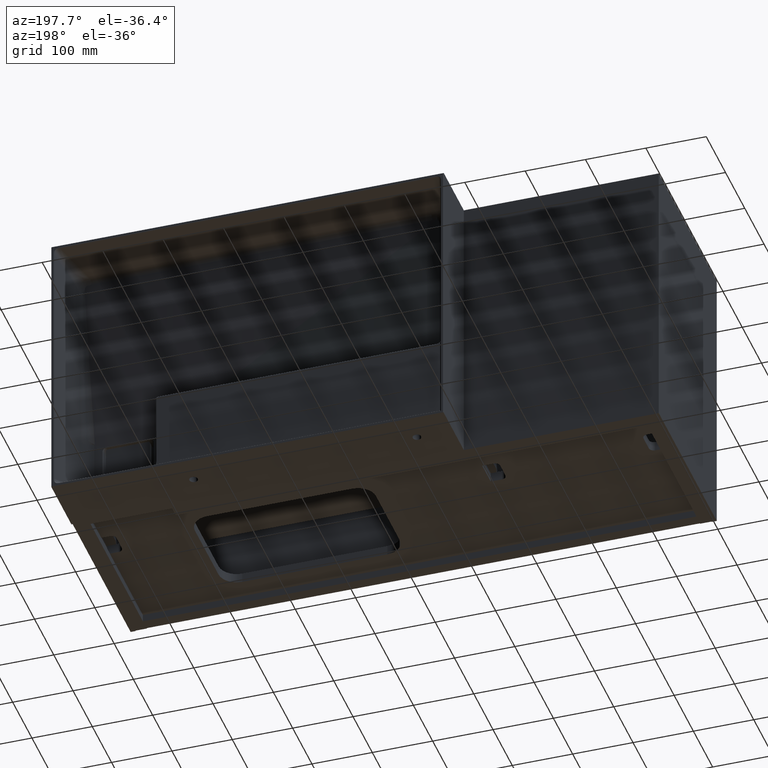
[diagram: clean part render]
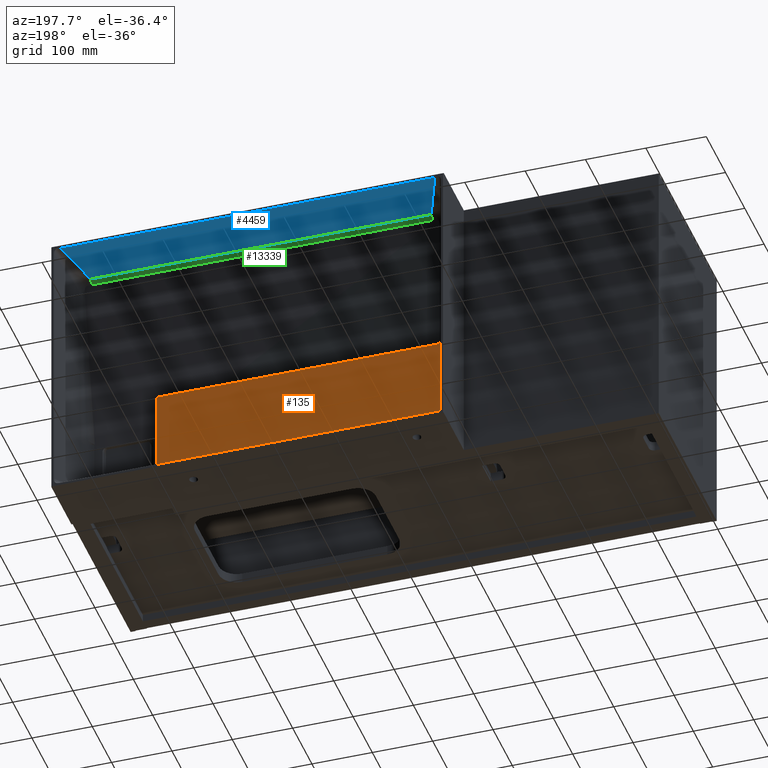
[diagram: same view with three faces highlighted in distinct colors, each labeled with its STEP entity id]
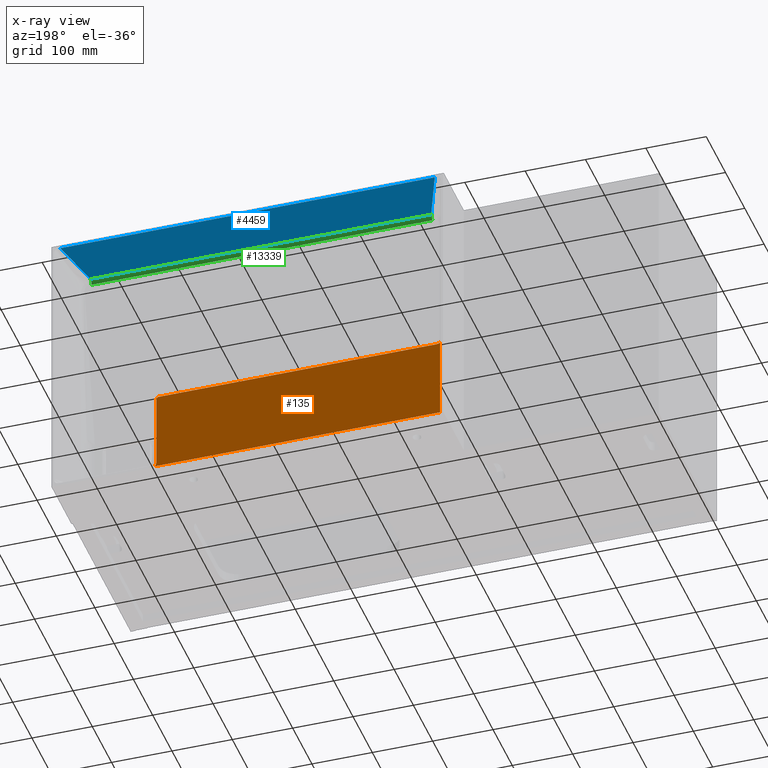
[diagram: x-ray of the same camera — body ghosted, the three highlighted faces saturated]
A machine part, auxiliary view with three faces highlighted in distinct colors.
The next image is the same camera in x-ray (body ghosted, the three faces saturated) — at least one of them is partly hidden behind the body in this view.
Their STEP definitions:

[orange] entity #135 — the highlighted planar face has unit normal (0, 1, 0).
#135 = ADVANCED_FACE ( 'NONE', ( #7012 ), #11899, .T. ) ;
#157 = VERTEX_POINT ( 'NONE', #2205 ) ;
#257 = EDGE_CURVE ( 'NONE', #3784, #4730, #8677, .T. ) ;
#392 = CARTESIAN_POINT ( 'NONE',  ( 806.9037684053056410, 395.0000000000000000, -460.7858540997308410 ) ) ;
#479 = CARTESIAN_POINT ( 'NONE',  ( 804.0258431290782255, 395.0000000000000000, -451.1449057083924004 ) ) ;
#567 = CARTESIAN_POINT ( 'NONE',  ( 339.2604613877724091, 394.9999999999998863, -325.8775157247926586 ) ) ;
#927 = CARTESIAN_POINT ( 'NONE',  ( 650.0000000000000000, 395.0000000000000000, -235.0000000000000000 ) ) ;
#1036 = DIRECTION ( 'NONE',  ( 2.413528314402515076E-16, -0.0000000000000000000, -1.000000000000000000 ) ) ;
#1172 = ORIENTED_EDGE ( 'NONE', *, *, #6297, .F. ) ;
#1580 = B_SPLINE_CURVE_WITH_KNOTS ( 'NONE', 3,
 ( #12731, #1764, #6648, #11539, #567, #5448, #10339, #15237, #4234, #9134, #14027, #3045, #7935, #12816 ),
 .UNSPECIFIED., .F., .F.,
 ( 4, 2, 2, 2, 2, 2, 4 ),
 ( 0.0000000000000000000, 0.002062643345217201468, 0.003093965017825802636, 0.004125286690434402936, 0.006187930035651802163, 0.007219251708260461878, 0.008250573380869119858 ),
 .UNSPECIFIED. ) ;
#1679 = CARTESIAN_POINT ( 'NONE',  ( 804.1476123154426432, 395.0000000000002842, -454.5767451132578003 ) ) ;
#1764 = CARTESIAN_POINT ( 'NONE',  ( 341.3208708988745457, 394.9999999999998863, -325.9741568709463877 ) ) ;
#2119 = AXIS2_PLACEMENT_3D ( 'NONE', #927, #5812, #10694 ) ;
#2205 = CARTESIAN_POINT ( 'NONE',  ( 334.2141459002691022, 395.0000000000000000, -323.9227097565687359 ) ) ;
#2580 = CARTESIAN_POINT ( 'NONE',  ( 802.3698889352292554, 395.0000000000000568, -325.9741568709216608 ) ) ;
#2605 = CARTESIAN_POINT ( 'NONE',  ( 804.0258431290781118, 395.0000000000000000, -234.9999999999999716 ) ) ;
#2880 = CARTESIAN_POINT ( 'NONE',  ( 804.6693992979872974, 395.0000000000001705, -457.0962568864613900 ) ) ;
#2967 = VECTOR ( 'NONE', #7489, 1000.000000000000000 ) ;
#3008 = EDGE_CURVE ( 'NONE', #10980, #10568, #9977, .T. ) ;
#3045 = CARTESIAN_POINT ( 'NONE',  ( 334.7455617612931178, 395.0000000000002842, -324.3644778535577871 ) ) ;
#3784 = VERTEX_POINT ( 'NONE', #13087 ) ;
#3856 = LINE ( 'NONE', #8750, #14761 ) ;
#3874 = CARTESIAN_POINT ( 'NONE',  ( 334.2141459002691590, 395.0000000000000000, -460.7858540997308410 ) ) ;
#4064 = CARTESIAN_POINT ( 'NONE',  ( 805.5314749255285278, 395.0000000000001137, -459.0918373645996553 ) ) ;
#4234 = CARTESIAN_POINT ( 'NONE',  ( 336.5742237291167953, 395.0000000000002842, -325.3268668704506581 ) ) ;
#4577 = LINE ( 'NONE', #9464, #13228 ) ;
#4682 = EDGE_CURVE ( 'NONE', #10568, #3784, #13581, .T. ) ;
#4730 = VERTEX_POINT ( 'NONE', #8765 ) ;
#5280 = CARTESIAN_POINT ( 'NONE',  ( 806.5796262205138873, 394.9999999999998863, -460.4889491759980160 ) ) ;
#5385 = CARTESIAN_POINT ( 'NONE',  ( 804.0258431290782255, 395.0000000000000000, -451.1449057083924004 ) ) ;
#5448 = CARTESIAN_POINT ( 'NONE',  ( 338.5764921108854537, 395.0000000000001137, -325.7912511627889671 ) ) ;
#5488 = CARTESIAN_POINT ( 'NONE',  ( 806.9037684053056410, 395.0000000000000000, -460.7858540997308410 ) ) ;
#5812 = DIRECTION ( 'NONE',  ( 0.0000000000000000000, 1.000000000000000000, 0.0000000000000000000 ) ) ;
#6228 = VECTOR ( 'NONE', #1036, 1000.000000000000000 ) ;
#6297 = EDGE_CURVE ( 'NONE', #9762, #157, #1580, .T. ) ;
#6558 = VERTEX_POINT ( 'NONE', #3874 ) ;
#6562 = CARTESIAN_POINT ( 'NONE',  ( 804.0297821953067796, 395.0000000000002842, -452.8680177196101226 ) ) ;
#6648 = CARTESIAN_POINT ( 'NONE',  ( 340.6325137807947385, 395.0000000000001705, -325.9715815982377194 ) ) ;
#7012 = FACE_OUTER_BOUND ( 'NONE', #12602, .T. ) ;
#7114 = LINE ( 'NONE', #12010, #6228 ) ;
#7139 = ORIENTED_EDGE ( 'NONE', *, *, #7212, .F. ) ;
#7212 = EDGE_CURVE ( 'NONE', #4730, #9762, #3856, .T. ) ;
#7463 = CARTESIAN_POINT ( 'NONE',  ( 800.0272138291759347, 395.0000000000000000, -325.9741568709216608 ) ) ;
#7489 = DIRECTION ( 'NONE',  ( -1.982541115402065356E-16, 0.0000000000000000000, 1.000000000000000000 ) ) ;
#7762 = CARTESIAN_POINT ( 'NONE',  ( 804.5507456264558641, 395.0000000000002842, -456.6803406497027709 ) ) ;
#7935 = CARTESIAN_POINT ( 'NONE',  ( 334.4712327410496187, 395.0000000000000568, -324.1564242695624785 ) ) ;
#8562 = EDGE_CURVE ( 'NONE', #6558, #10980, #4577, .T. ) ;
#8663 = CARTESIAN_POINT ( 'NONE',  ( 804.0258431290781118, 395.0000000000000000, -329.9727861708239516 ) ) ;
#8677 =( BOUNDED_CURVE ( )  B_SPLINE_CURVE ( 3, ( #8663, #13556, #2580, #7463 ),
 .UNSPECIFIED., .F., .T. ) 
 B_SPLINE_CURVE_WITH_KNOTS ( ( 4, 4 ),
 ( 2.356537106530507408, 3.926648200649078380 ),
 .UNSPECIFIED. ) 
 CURVE ( )  GEOMETRIC_REPRESENTATION_ITEM ( )  RATIONAL_B_SPLINE_CURVE ( ( 1.000000000000000000, 0.8048993373437772769, 0.8048993373437772769, 1.000000000000000000 ) ) 
 REPRESENTATION_ITEM ( '' )  );
#8750 = CARTESIAN_POINT ( 'NONE',  ( 650.0000000000000000, 395.0000000000000000, -325.9741568709216608 ) ) ;
#8765 = CARTESIAN_POINT ( 'NONE',  ( 800.0272138291759347, 395.0000000000000000, -325.9741568709216608 ) ) ;
#8959 = CARTESIAN_POINT ( 'NONE',  ( 805.1326691464023497, 395.0000000000001705, -458.3223080525924615 ) ) ;
#9134 = CARTESIAN_POINT ( 'NONE',  ( 335.6307633916148916, 395.0000000000002842, -324.8999211131446145 ) ) ;
#9464 = CARTESIAN_POINT ( 'NONE',  ( 650.0000000000000000, 395.0000000000000000, -460.7858540997308410 ) ) ;
#9762 = VERTEX_POINT ( 'NONE', #11352 ) ;
#9977 = B_SPLINE_CURVE_WITH_KNOTS ( 'NONE', 3,
 ( #392, #5280, #10164, #15067, #4064, #8959, #13861, #2880, #7762, #12641, #1679, #6562, #11454, #479 ),
 .UNSPECIFIED., .F., .F.,
 ( 4, 2, 2, 2, 2, 2, 4 ),
 ( 0.0000000000000000000, 0.001314175442862175643, 0.002628350885724351285, 0.003942526328586526928, 0.005256701771448702570, 0.007885052657173053856, 0.01051340354289740514 ),
 .UNSPECIFIED. ) ;
#10164 = CARTESIAN_POINT ( 'NONE',  ( 806.2850225118213530, 395.0000000000000568, -460.1621168228376746 ) ) ;
#10339 = CARTESIAN_POINT ( 'NONE',  ( 338.2355843847057031, 394.9999999999998295, -325.7355729384422602 ) ) ;
#10568 = VERTEX_POINT ( 'NONE', #5385 ) ;
#10694 = DIRECTION ( 'NONE',  ( 0.0000000000000000000, 0.0000000000000000000, 1.000000000000000000 ) ) ;
#10980 = VERTEX_POINT ( 'NONE', #5488 ) ;
#11206 = ORIENTED_EDGE ( 'NONE', *, *, #15845, .F. ) ;
#11352 = CARTESIAN_POINT ( 'NONE',  ( 342.0093630388655583, 395.0000000000000000, -325.9741568709216608 ) ) ;
#11427 = ORIENTED_EDGE ( 'NONE', *, *, #3008, .F. ) ;
#11454 = CARTESIAN_POINT ( 'NONE',  ( 804.0258431288257270, 395.0000000000000000, -452.0067104691340774 ) ) ;
#11539 = CARTESIAN_POINT ( 'NONE',  ( 339.6031032880878229, 395.0000000000001137, -325.9081120509787297 ) ) ;
#11899 = PLANE ( 'NONE',  #2119 ) ;
#12010 = CARTESIAN_POINT ( 'NONE',  ( 334.2141459002691022, 395.0000000000000000, -235.0000000000000568 ) ) ;
#12602 = EDGE_LOOP ( 'NONE', ( #13900, #11206, #1172, #7139, #13999, #15201, #11427 ) ) ;
#12641 = CARTESIAN_POINT ( 'NONE',  ( 804.2581647348011984, 395.0000000000003979, -455.4245869311435513 ) ) ;
#12731 = CARTESIAN_POINT ( 'NONE',  ( 342.0093630388655583, 395.0000000000000000, -325.9741568709216608 ) ) ;
#12816 = CARTESIAN_POINT ( 'NONE',  ( 334.2141459002691022, 395.0000000000000000, -323.9227097565687359 ) ) ;
#13087 = CARTESIAN_POINT ( 'NONE',  ( 804.0258431290781118, 395.0000000000000000, -329.9727861708239516 ) ) ;
#13228 = VECTOR ( 'NONE', #14361, 1000.000000000000000 ) ;
#13556 = CARTESIAN_POINT ( 'NONE',  ( 804.0258431290784529, 395.0000000000000568, -327.6301110647706878 ) ) ;
#13581 = LINE ( 'NONE', #2605, #2967 ) ;
#13647 = DIRECTION ( 'NONE',  ( -1.000000000000000000, 0.0000000000000000000, 5.843279076974509016E-17 ) ) ;
#13861 = CARTESIAN_POINT ( 'NONE',  ( 804.9616185335460159, 395.0000000000002274, -457.9211539023941100 ) ) ;
#13900 = ORIENTED_EDGE ( 'NONE', *, *, #8562, .F. ) ;
#13999 = ORIENTED_EDGE ( 'NONE', *, *, #257, .F. ) ;
#14027 = CARTESIAN_POINT ( 'NONE',  ( 335.3243234332734914, 395.0000000000002274, -324.7357828460449696 ) ) ;
#14361 = DIRECTION ( 'NONE',  ( 1.000000000000000000, -0.0000000000000000000, -0.0000000000000000000 ) ) ;
#14761 = VECTOR ( 'NONE', #13647, 1000.000000000000000 ) ;
#15067 = CARTESIAN_POINT ( 'NONE',  ( 805.7595238956942012, 395.0000000000000000, -459.4611088881936780 ) ) ;
#15201 = ORIENTED_EDGE ( 'NONE', *, *, #4682, .F. ) ;
#15237 = CARTESIAN_POINT ( 'NONE',  ( 337.2286717636820299, 394.9999999999998863, -325.5247354199294136 ) ) ;
#15845 = EDGE_CURVE ( 'NONE', #157, #6558, #7114, .T. ) ;

[blue] entity #4459 — the highlighted planar face has unit normal (0, -0.2588, 0.9659).
#82 = VERTEX_POINT ( 'NONE', #14311 ) ;
#1021 = CARTESIAN_POINT ( 'NONE',  ( 370.0351061994886095, 335.6455462854175380, -23.58346986432410830 ) ) ;
#1260 = B_SPLINE_CURVE_WITH_KNOTS ( 'NONE', 3,
 ( #2224, #7100, #11997, #1021, #5904, #10788, #15692 ),
 .UNSPECIFIED., .F., .F.,
 ( 4, 3, 4 ),
 ( 0.3400219910679249669, 0.3423085011432789870, 0.9045247988192487432 ),
 .UNSPECIFIED. ) ;
#1482 = CARTESIAN_POINT ( 'NONE',  ( 960.0405550710241869, 404.2588190451297123, -5.198598838302814329 ) ) ;
#1558 = ORIENTED_EDGE ( 'NONE', *, *, #8642, .F. ) ;
#2001 = EDGE_CURVE ( 'NONE', #82, #11980, #13806, .T. ) ;
#2224 = CARTESIAN_POINT ( 'NONE',  ( 367.7485961235876744, 335.6455462856420695, -23.58346986426387915 ) ) ;
#2674 = CARTESIAN_POINT ( 'NONE',  ( 932.2514038755812180, 335.6455462853363656, -23.58346986434584025 ) ) ;
#2796 = CARTESIAN_POINT ( 'NONE',  ( 358.4855457211724570, 358.5166372060082836, -17.45517952213296553 ) ) ;
#3110 = DIRECTION ( 'NONE',  ( 0.0000000000000000000, -0.2588190451025213501, 0.9659258262890680902 ) ) ;
#3649 = DIRECTION ( 'NONE',  ( -1.000000000000000000, 0.0000000000000000000, 0.0000000000000000000 ) ) ;
#4146 = VERTEX_POINT ( 'NONE', #10966 ) ;
#4299 = FACE_OUTER_BOUND ( 'NONE', #13856, .T. ) ;
#4459 = ADVANCED_FACE ( 'NONE', ( #4299 ), #9196, .F. ) ;
#5525 = EDGE_CURVE ( 'NONE', #11980, #4146, #9747, .T. ) ;
#5904 = CARTESIAN_POINT ( 'NONE',  ( 557.4405387581451805, 335.6455462854175380, -23.58346986432410830 ) ) ;
#7100 = CARTESIAN_POINT ( 'NONE',  ( 368.5107661492526745, 335.6455462854175380, -23.58346986432410830 ) ) ;
#7559 = CARTESIAN_POINT ( 'NONE',  ( 941.5144542752897223, 358.5166372050206292, -17.45517952239767112 ) ) ;
#7675 = CARTESIAN_POINT ( 'NONE',  ( 367.7485961235876744, 335.6455462856420695, -23.58346986426387915 ) ) ;
#7793 = CARTESIAN_POINT ( 'NONE',  ( 960.0405550710241869, 404.2588190451297123, -5.198598838302814329 ) ) ;
#8000 = DIRECTION ( 'NONE',  ( -0.0000000000000000000, -0.9659258262890680902, -0.2588190451025213501 ) ) ;
#8125 = EDGE_CURVE ( 'NONE', #14806, #82, #1260, .T. ) ;
#8642 = EDGE_CURVE ( 'NONE', #4146, #14806, #15411, .T. ) ;
#8879 = CARTESIAN_POINT ( 'NONE',  ( 339.9594449285664268, 404.2588190451832020, -5.198598838288493340 ) ) ;
#9196 = PLANE ( 'NONE',  #10238 ) ;
#9747 = LINE ( 'NONE', #14649, #14241 ) ;
#10238 = AXIS2_PLACEMENT_3D ( 'NONE', #14087, #3110, #8000 ) ;
#10428 = CARTESIAN_POINT ( 'NONE',  ( 367.7485961235876744, 335.6455462856420695, -23.58346986426387915 ) ) ;
#10788 = CARTESIAN_POINT ( 'NONE',  ( 744.8459713168016378, 335.6455462854175380, -23.58346986432410830 ) ) ;
#10966 = CARTESIAN_POINT ( 'NONE',  ( 339.9594449285664268, 404.2588190451832020, -5.198598838288493340 ) ) ;
#11980 = VERTEX_POINT ( 'NONE', #7793 ) ;
#11997 = CARTESIAN_POINT ( 'NONE',  ( 369.2729361743706136, 335.6455462854175380, -23.58346986432410830 ) ) ;
#12444 = CARTESIAN_POINT ( 'NONE',  ( 950.7775046737408502, 381.3877281259243546, -11.32688918012272872 ) ) ;
#13774 = CARTESIAN_POINT ( 'NONE',  ( 349.2224953248548331, 381.3877281249369844, -11.32688918038724246 ) ) ;
#13806 = B_SPLINE_CURVE_WITH_KNOTS ( 'NONE', 3,
 ( #2674, #7559, #12444, #1482 ),
 .UNSPECIFIED., .F., .F.,
 ( 4, 4 ),
 ( 0.07527395047165294506, 0.9901175872656350352 ),
 .UNSPECIFIED. ) ;
#13856 = EDGE_LOOP ( 'NONE', ( #15502, #15119, #1558, #14309 ) ) ;
#14087 = CARTESIAN_POINT ( 'NONE',  ( 970.0000000000000000, 404.9999999999999432, -5.000000000000004441 ) ) ;
#14241 = VECTOR ( 'NONE', #3649, 1000.000000000000000 ) ;
#14309 = ORIENTED_EDGE ( 'NONE', *, *, #5525, .F. ) ;
#14311 = CARTESIAN_POINT ( 'NONE',  ( 932.2514038755812180, 335.6455462853363656, -23.58346986434584025 ) ) ;
#14649 = CARTESIAN_POINT ( 'NONE',  ( 970.0000000000000000, 404.2588190451025412, -5.198598838310114267 ) ) ;
#14806 = VERTEX_POINT ( 'NONE', #10428 ) ;
#15119 = ORIENTED_EDGE ( 'NONE', *, *, #8125, .F. ) ;
#15411 = B_SPLINE_CURVE_WITH_KNOTS ( 'NONE', 3,
 ( #8879, #13774, #2796, #7675 ),
 .UNSPECIFIED., .F., .F.,
 ( 4, 4 ),
 ( 0.009882412722463625523, 0.9247260495101637945 ),
 .UNSPECIFIED. ) ;
#15502 = ORIENTED_EDGE ( 'NONE', *, *, #2001, .F. ) ;
#15692 = CARTESIAN_POINT ( 'NONE',  ( 932.2514038755812180, 335.6455462853363656, -23.58346986434584025 ) ) ;

[green] entity #13339 — the highlighted face is a freeform B-spline surface patch.
#80 = EDGE_CURVE ( 'NONE', #15709, #9602, #2716, .T. ) ;
#82 = VERTEX_POINT ( 'NONE', #14311 ) ;
#636 = ORIENTED_EDGE ( 'NONE', *, *, #11938, .T. ) ;
#850 = CARTESIAN_POINT ( 'NONE',  ( 744.8459713168016378, 329.7249613011944689, -30.93441408255048941 ) ) ;
#1021 = CARTESIAN_POINT ( 'NONE',  ( 370.0351061994886095, 335.6455462854175380, -23.58346986432410830 ) ) ;
#1143 = CARTESIAN_POINT ( 'NONE',  ( 744.8459713168014105, 330.0000000000000000, -25.09618943233428823 ) ) ;
#1260 = B_SPLINE_CURVE_WITH_KNOTS ( 'NONE', 3,
 ( #2224, #7100, #11997, #1021, #5904, #10788, #15692 ),
 .UNSPECIFIED., .F., .F.,
 ( 4, 3, 4 ),
 ( 0.3400219910679249669, 0.3423085011432789870, 0.9045247988192487432 ),
 .UNSPECIFIED. ) ;
#1782 = CARTESIAN_POINT ( 'NONE',  ( 367.7485961241346217, 329.7249613011944689, -30.93441408255048941 ) ) ;
#2224 = CARTESIAN_POINT ( 'NONE',  ( 367.7485961235876744, 335.6455462856420695, -23.58346986426387915 ) ) ;
#2350 = CARTESIAN_POINT ( 'NONE',  ( -15.82370991247355896, 330.0000000000000000, -25.09618943233428823 ) ) ;
#2716 = B_SPLINE_CURVE_WITH_KNOTS ( 'NONE', 3,
 ( #11821, #850, #5734, #10614, #15522, #4520, #9412 ),
 .UNSPECIFIED., .F., .F.,
 ( 4, 3, 4 ),
 ( -0.8152679471926076449, -0.2530516495166379443, -0.2507651394412838686 ),
 .UNSPECIFIED. ) ;
#2914 = CARTESIAN_POINT ( 'NONE',  ( 367.7485961235876744, 335.6455462856420695, -23.58346986426387915 ) ) ;
#3117 = CARTESIAN_POINT ( 'NONE',  ( 932.2514038753313343, 329.7249613011944689, -30.93441408255034730 ) ) ;
#3535 = CARTESIAN_POINT ( 'NONE',  ( 932.2514038754582089, 335.6455462854175380, -23.58346986432407988 ) ) ;
#3609 = CARTESIAN_POINT ( 'NONE',  ( 744.8459713168016378, 329.7249613011944689, -30.93441408255048941 ) ) ;
#4084 =( BOUNDED_SURFACE ( )  B_SPLINE_SURFACE ( 2, 3, ( 
 ( #9616, #14518, #15742, #4737, #9629, #14530, #3535 ),
 ( #8424, #13317, #2350, #7222, #12114, #1143, #6022 ),
 ( #10907, #15816, #4816, #9705, #14604, #3609, #8503 ) ),
 .UNSPECIFIED., .F., .F., .T. ) 
 B_SPLINE_SURFACE_WITH_KNOTS ( ( 3, 3 ),
 ( 4, 3, 4 ),
 ( 0.0000000000000000000, 1.000000000000000000 ),
 ( -0.8152679471926076449, 0.3423085011432789870, 0.9045247988192487432 ),
 .UNSPECIFIED. ) 
 GEOMETRIC_REPRESENTATION_ITEM ( )  RATIONAL_B_SPLINE_SURFACE ( (
 ( 1.000000000000000000, 1.000000000000000000, 1.000000000000000000, 1.000000000000000000, 1.000000000000000000, 1.000000000000000000, 1.000000000000000000),
 ( 0.8074610394652860235, 0.8074610394652860235, 0.8074610394652860235, 0.8074610394652860235, 0.8074610394652860235, 0.8074610394652860235, 0.8074610394652860235),
 ( 1.000000000000000000, 1.000000000000000000, 1.000000000000000000, 1.000000000000000000, 1.000000000000000000, 1.000000000000000000, 1.000000000000000000) ) ) 
 REPRESENTATION_ITEM ( '' )  SURFACE ( )  );
#4107 = CARTESIAN_POINT ( 'NONE',  ( 932.2514038755812180, 335.6455462853363656, -23.58346986434584025 ) ) ;
#4520 = CARTESIAN_POINT ( 'NONE',  ( 368.5107661492525608, 329.7249613011944689, -30.93441408255048586 ) ) ;
#4737 = CARTESIAN_POINT ( 'NONE',  ( 370.0351061994886095, 335.6455462854175380, -23.58346986432410830 ) ) ;
#4816 = CARTESIAN_POINT ( 'NONE',  ( -15.82370991247350389, 329.7249613011944689, -30.93441408255048941 ) ) ;
#5437 = ORIENTED_EDGE ( 'NONE', *, *, #80, .T. ) ;
#5734 = CARTESIAN_POINT ( 'NONE',  ( 557.4405387581451805, 329.7249613011944689, -30.93441408255048941 ) ) ;
#5904 = CARTESIAN_POINT ( 'NONE',  ( 557.4405387581451805, 335.6455462854175380, -23.58346986432410830 ) ) ;
#6022 = CARTESIAN_POINT ( 'NONE',  ( 932.2514038754582089, 330.0000000000000000, -25.09618943233425270 ) ) ;
#7100 = CARTESIAN_POINT ( 'NONE',  ( 368.5107661492526745, 335.6455462854175380, -23.58346986432410830 ) ) ;
#7222 = CARTESIAN_POINT ( 'NONE',  ( 370.0351061994884958, 330.0000000000000000, -25.09618943233428823 ) ) ;
#8125 = EDGE_CURVE ( 'NONE', #14806, #82, #1260, .T. ) ;
#8424 = CARTESIAN_POINT ( 'NONE',  ( -787.5413421363977022, 330.0000000000000000, -25.09618943233425270 ) ) ;
#8503 = CARTESIAN_POINT ( 'NONE',  ( 932.2514038754582089, 329.7249613011944689, -30.93441408255046099 ) ) ;
#8998 = CARTESIAN_POINT ( 'NONE',  ( 367.7485961241346217, 329.7249613011944689, -30.93441408255048941 ) ) ;
#9365 = EDGE_CURVE ( 'NONE', #15709, #82, #12378, .T. ) ;
#9412 = CARTESIAN_POINT ( 'NONE',  ( 367.7485961241346217, 329.7249613011944689, -30.93441408255048941 ) ) ;
#9602 = VERTEX_POINT ( 'NONE', #1782 ) ;
#9616 = CARTESIAN_POINT ( 'NONE',  ( -787.5413421363979296, 335.6455462854175380, -23.58346986432407988 ) ) ;
#9629 = CARTESIAN_POINT ( 'NONE',  ( 557.4405387581451805, 335.6455462854175380, -23.58346986432410830 ) ) ;
#9705 = CARTESIAN_POINT ( 'NONE',  ( 370.0351061994886095, 329.7249613011944689, -30.93441408255048941 ) ) ;
#10202 = CARTESIAN_POINT ( 'NONE',  ( 932.2514038753313343, 329.7249613011944689, -30.93441408255034730 ) ) ;
#10428 = CARTESIAN_POINT ( 'NONE',  ( 367.7485961235876744, 335.6455462856420695, -23.58346986426387915 ) ) ;
#10614 = CARTESIAN_POINT ( 'NONE',  ( 370.0351061994886095, 329.7249613011944689, -30.93441408255048941 ) ) ;
#10788 = CARTESIAN_POINT ( 'NONE',  ( 744.8459713168016378, 335.6455462854175380, -23.58346986432410830 ) ) ;
#10907 = CARTESIAN_POINT ( 'NONE',  ( -787.5413421363979296, 329.7249613011944689, -30.93441408255046099 ) ) ;
#11188 = ORIENTED_EDGE ( 'NONE', *, *, #8125, .T. ) ;
#11821 = CARTESIAN_POINT ( 'NONE',  ( 932.2514038753313343, 329.7249613011944689, -30.93441408255034730 ) ) ;
#11898 = EDGE_LOOP ( 'NONE', ( #13794, #5437, #636, #11188 ) ) ;
#11938 = EDGE_CURVE ( 'NONE', #9602, #14806, #13425, .T. ) ;
#11997 = CARTESIAN_POINT ( 'NONE',  ( 369.2729361743706136, 335.6455462854175380, -23.58346986432410830 ) ) ;
#12114 = CARTESIAN_POINT ( 'NONE',  ( 557.4405387581450668, 330.0000000000000000, -25.09618943233428823 ) ) ;
#12378 =( BOUNDED_CURVE ( )  B_SPLINE_CURVE ( 2, ( #10202, #15101, #4107 ),
 .UNSPECIFIED., .F., .F. ) 
 B_SPLINE_CURVE_WITH_KNOTS ( ( 3, 3 ),
 ( 0.0000000000000000000, 1.000000000000000000 ),
 .UNSPECIFIED. ) 
 CURVE ( )  GEOMETRIC_REPRESENTATION_ITEM ( )  RATIONAL_B_SPLINE_CURVE ( ( 1.000000000000000000, 0.8074610394707646410, 1.000000000000000000 ) ) 
 REPRESENTATION_ITEM ( '' )  );
#13317 = CARTESIAN_POINT ( 'NONE',  ( -401.6825260244355036, 330.0000000000000000, -25.09618943233428823 ) ) ;
#13339 = ADVANCED_FACE ( 'NONE', ( #15729 ), #4084, .F. ) ;
#13425 =( BOUNDED_CURVE ( )  B_SPLINE_CURVE ( 2, ( #8998, #13896, #2914 ),
 .UNSPECIFIED., .F., .F. ) 
 B_SPLINE_CURVE_WITH_KNOTS ( ( 3, 3 ),
 ( 0.0000000000000000000, 1.000000000000000000 ),
 .UNSPECIFIED. ) 
 CURVE ( )  GEOMETRIC_REPRESENTATION_ITEM ( )  RATIONAL_B_SPLINE_CURVE ( ( 1.000000000000000000, 0.8074610394652860235, 1.000000000000000000 ) ) 
 REPRESENTATION_ITEM ( '' )  );
#13794 = ORIENTED_EDGE ( 'NONE', *, *, #9365, .F. ) ;
#13896 = CARTESIAN_POINT ( 'NONE',  ( 367.7485961240781194, 329.9999999999999432, -25.09618943233428823 ) ) ;
#14311 = CARTESIAN_POINT ( 'NONE',  ( 932.2514038755812180, 335.6455462853363656, -23.58346986434584025 ) ) ;
#14518 = CARTESIAN_POINT ( 'NONE',  ( -401.6825260244356741, 335.6455462854175380, -23.58346986432410830 ) ) ;
#14530 = CARTESIAN_POINT ( 'NONE',  ( 744.8459713168016378, 335.6455462854175380, -23.58346986432410830 ) ) ;
#14604 = CARTESIAN_POINT ( 'NONE',  ( 557.4405387581451805, 329.7249613011944689, -30.93441408255048941 ) ) ;
#14806 = VERTEX_POINT ( 'NONE', #10428 ) ;
#15101 = CARTESIAN_POINT ( 'NONE',  ( 932.2514038756228274, 329.9999999999947704, -25.09618943244800704 ) ) ;
#15522 = CARTESIAN_POINT ( 'NONE',  ( 369.2729361743705567, 329.7249613011944689, -30.93441408255048586 ) ) ;
#15692 = CARTESIAN_POINT ( 'NONE',  ( 932.2514038755812180, 335.6455462853363656, -23.58346986434584025 ) ) ;
#15709 = VERTEX_POINT ( 'NONE', #3117 ) ;
#15729 = FACE_OUTER_BOUND ( 'NONE', #11898, .T. ) ;
#15742 = CARTESIAN_POINT ( 'NONE',  ( -15.82370991247350389, 335.6455462854175380, -23.58346986432410830 ) ) ;
#15816 = CARTESIAN_POINT ( 'NONE',  ( -401.6825260244356741, 329.7249613011944689, -30.93441408255048941 ) ) ;